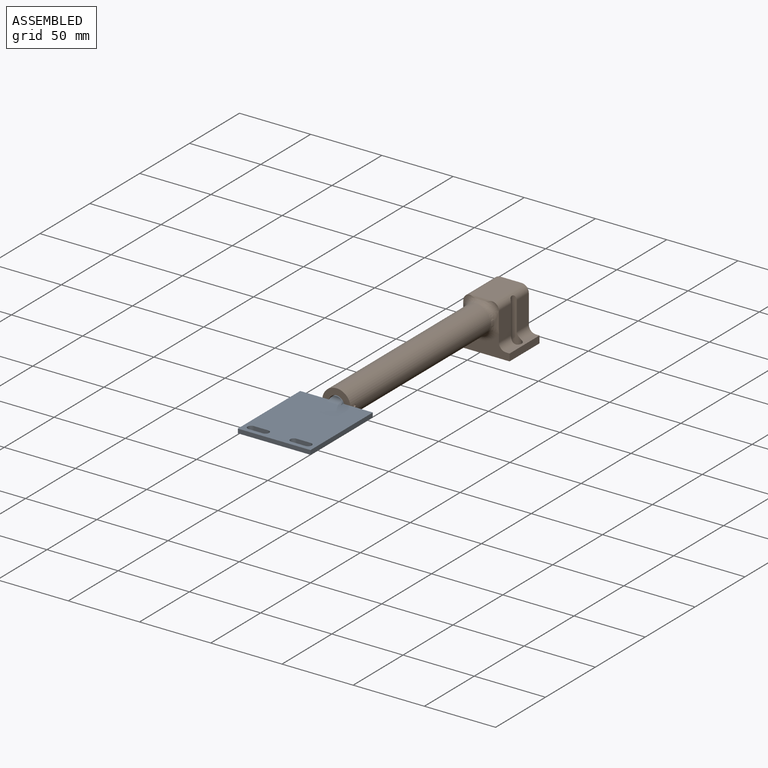
[diagram: assembled view]
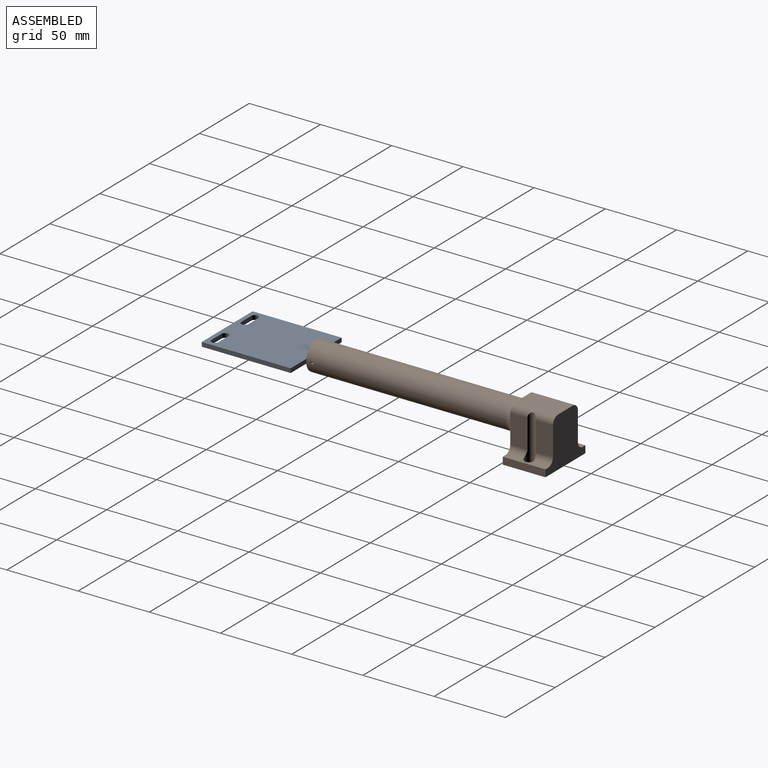
[diagram: assembled view, second angle]
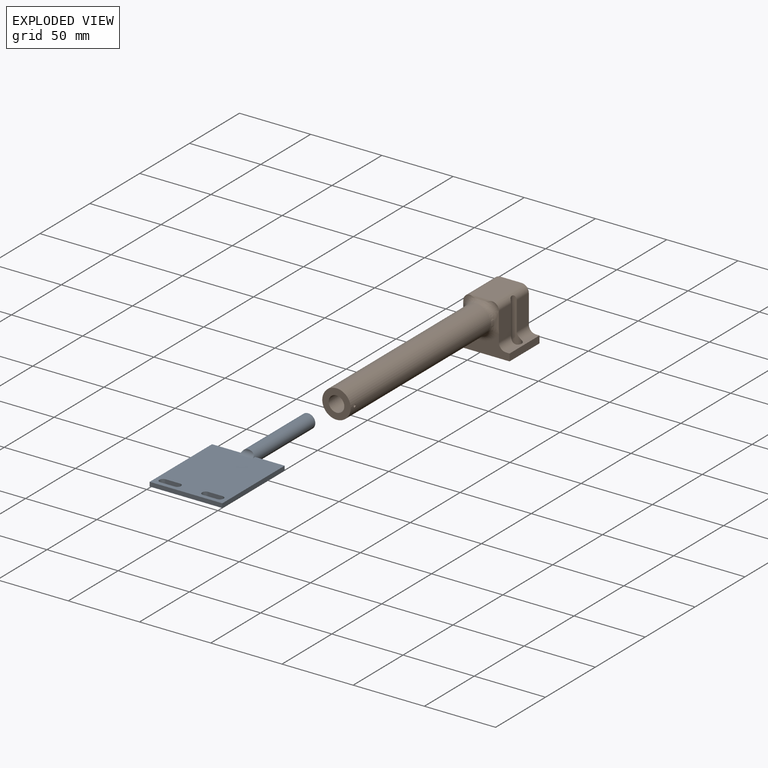
[diagram: exploded view]
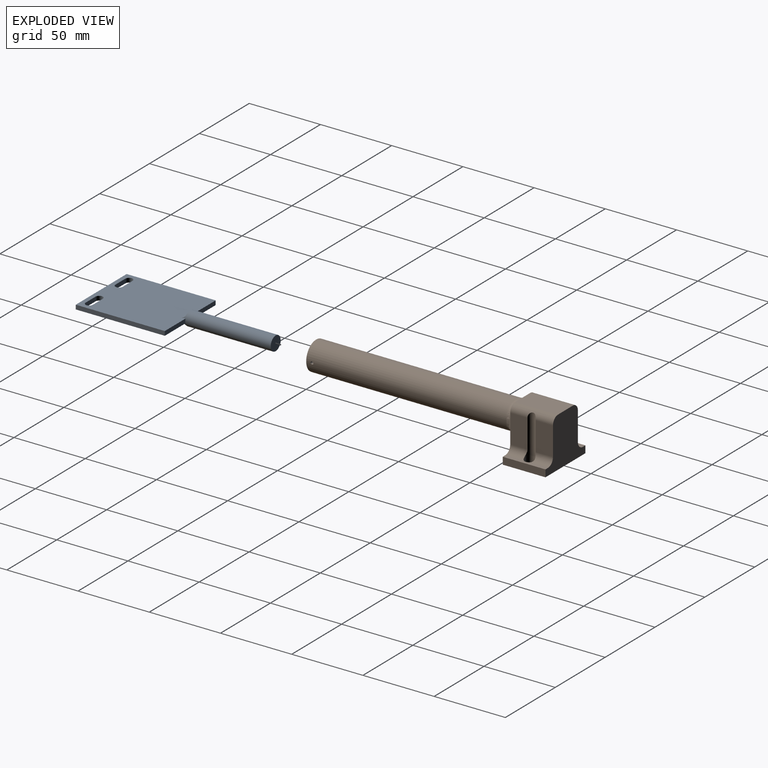
[diagram: exploded view, second angle]
ASSEMBLY  parts=2 mates=2
PART A: 21 faces, bbox 51x10x122.5 mm
  f0: plane 20.75x3.01mm, normal (0,0,-1), area 61.7mm2, adj f9,f13,f14,f16
  f1: cylinder r=2.55mm len=5.1mm, axis (0,-1,0), area 24mm2, adj f2,f12,f13,f14
  f2: plane 10x3mm, normal (0,0,1), area 30mm2, adj f1,f3,f13,f14
  f3: cylinder r=2.55mm len=5.1mm, axis (0,-1,0), area 24mm2, adj f2,f12,f13,f14
  f4: cylinder r=2.55mm len=5.1mm, axis (0,-1,0), area 24mm2, adj f5,f10,f13,f14
  f5: plane 10x3mm, normal (0,0,1), area 30mm2, adj f4,f6,f13,f14
  f6: cylinder r=2.55mm len=5.1mm, axis (0,-1,0), area 24mm2, adj f5,f10,f13,f14
  f7: plane 62.5x3mm, normal (-1,0,0), area 187.5mm2, adj f8,f11,f13,f14
  f8: plane 20.75x3.01mm, normal (0,0,-1), area 61.7mm2, adj f7,f13,f14,f16
  f9: plane 62.5x3mm, normal (1,0,0), area 187.5mm2, adj f0,f11,f13,f14
  f10: plane 10x3mm, normal (0,0,-1), area 30mm2, adj f4,f6,f13,f14
  f11: plane 51x3mm, normal (0,0,1), area 153mm2, adj f7,f9,f13,f14
  f12: plane 10x3mm, normal (0,0,-1), area 30mm2, adj f1,f3,f13,f14
  f13: plane 62.5x51mm, normal (0,1,0), area 3015.9mm2, adj f0,f1,f2,f3,f4,f5,f6,f7
  f14: plane 62.5x51mm, normal (0,-1,0), area 3016.1mm2, adj f0,f1,f2,f3,f4,f5,f6,f7
  f15: plane 4.64x0.59mm, normal (0,0,1), area 1.7mm2, adj f16,f19
  f16: cylinder r=5mm len=63mm, axis (0,0,-1), area 1893.7mm2, adj f0,f8,f13,f14,f15,f17,f18,f19
  f17: plane 4.23x0.49mm, normal (0,0,1), area 1.3mm2, adj f16,f20
  f18: plane 10x10mm, normal (0,0,-1), area 78.5mm2, adj f16
  f19: cylinder r=3mm len=9.57mm, axis (1,0,0), area 33.3mm2, adj f13,f15,f16
  f20: cylinder r=3mm len=9.51mm, axis (-1,0,0), area 32.2mm2, adj f14,f16,f17
PART B: 37 faces, bbox 40.4x175.4x37.8 mm
  f0: plane 2.8x2.62mm, normal (0,-1,0), area 0.7mm2, adj f25,f34
  f1: plane 2.8x2.62mm, normal (0,-1,0), area 0.7mm2, adj f26,f27
  f2: plane 20x12.13mm, normal (-1,0,0), area 242.6mm2, adj f5,f15,f23,f25
  f3: plane 20x12.13mm, normal (1,0,0), area 242.6mm2, adj f5,f14,f24,f26
  f4: plane 30x2.5mm, normal (0,0,1), area 73.8mm2, adj f5,f7,f8,f14,f22,f24
  f5: plane 40x35mm, normal (0,1,0), area 950mm2, adj f2,f3,f4,f6,f8,f9,f10,f13
  f6: plane 30x5mm, normal (-1,0,0), area 150mm2, adj f5,f7,f9,f10
  f7: plane 40x14.71mm, normal (0,-1,0), area 335.4mm2, adj f4,f6,f8,f9,f10,f11,f12,f21
  f8: plane 30x5mm, normal (1,0,0), area 150mm2, adj f4,f5,f7,f10
  f9: plane 30x2.5mm, normal (0,0,1), area 73.8mm2, adj f5,f6,f7,f15,f21,f23
  f10: plane 40x30mm, normal (0,0,-1), area 1123mm2, adj f5,f6,f7,f8,f14,f15
  f11: plane 20.44x12.56mm, normal (-1,0,0), area 242.6mm2, adj f7,f15,f21,f25,f35
  f12: plane 20.42x12.55mm, normal (1,0,0), area 242.6mm2, adj f7,f14,f22,f26,f31
  f13: plane 30.28x15.28mm, normal (0,0,1), area 450mm2, adj f5,f25,f26,f30
  f14: cylinder r=3.5mm len=33.57mm, axis (0,0,1), area 309.1mm2, adj f3,f4,f10,f12,f22,f24,f26
  f15: cylinder r=3.5mm len=33.57mm, axis (0,0,1), area 309.1mm2, adj f2,f9,f10,f11,f21,f23,f25
  f16: cylinder r=5.5mm len=145mm, axis (0,1,0), area 5007.7mm2, adj f18,f19,f20
  f17: cylinder r=10mm len=141mm, axis (0,1,0), area 8800.7mm2, adj f18,f20,f27,f28,f29,f30,f31,f32
  f18: plane 20x20mm, normal (0,-1,0), area 219.1mm2, adj f16,f17
  f19: plane 11x11mm, normal (0,-1,0), area 95mm2, adj f16
  f20: cylinder r=1mm len=4.54mm, axis (1,0,0), area 28.5mm2, adj f16,f17
  f21: cylinder r=5mm len=13.2mm, axis (0,-1,0), area 93.3mm2, adj f7,f9,f11,f15
  f22: cylinder r=5mm len=13.2mm, axis (0,1,0), area 93.3mm2, adj f4,f7,f12,f14
  f23: cylinder r=5mm len=13.2mm, axis (0,-1,0), area 93.3mm2, adj f2,f5,f9,f15
  f24: cylinder r=5mm len=13.2mm, axis (0,1,0), area 93.3mm2, adj f3,f4,f5,f14
  f25: cylinder r=5mm len=30mm, axis (0,1,0), area 217.2mm2, adj f0,f2,f5,f11,f13,f15,f32,f36
  f26: cylinder r=5mm len=30mm, axis (0,-1,0), area 217.2mm2, adj f1,f3,f5,f12,f13,f14,f28,f29
  f27: torus R=15mm, axis (0,1,0), area 23.8mm2, adj f1,f17,f28,f29
  f28: bspline ~5.17x5.1mm, area 12.4mm2, adj f17,f26,f27,f30
  f29: bspline ~5.49x5.25mm, area 10.4mm2, adj f17,f26,f27,f31
  f30: bspline ~17.3x5.05mm, area 65.5mm2, adj f13,f17,f28,f32
  f31: bspline ~17.41x5.6mm, area 73mm2, adj f12,f17,f29,f33
  f32: bspline ~6.13x5.25mm, area 12.4mm2, adj f17,f25,f30,f34
  f33: torus R=15mm, axis (0,1,0), area 182.9mm2, adj f7,f17,f31,f35
  f34: torus R=15mm, axis (0,1,0), area 23.8mm2, adj f0,f17,f32,f36
  f35: bspline ~16.82x5.56mm, area 73mm2, adj f11,f17,f33,f36
  f36: bspline ~5.06x4.8mm, area 10.4mm2, adj f17,f25,f34,f35
PLACE A rot(axis=(1,0,0),90deg) t=(463.07,-329.01,-190.61)mm
PLACE B t=(185.35,-181.93,-97.54)mm
MATE cylindrical A.f16 <-> B.f16  axis (0,1,0) through (205.55,-329.01,-74.54)mm
MATE planar A.f0 <-> B.f16  axis (0,1,0) through (231.05,-389.01,-73.09)mm
